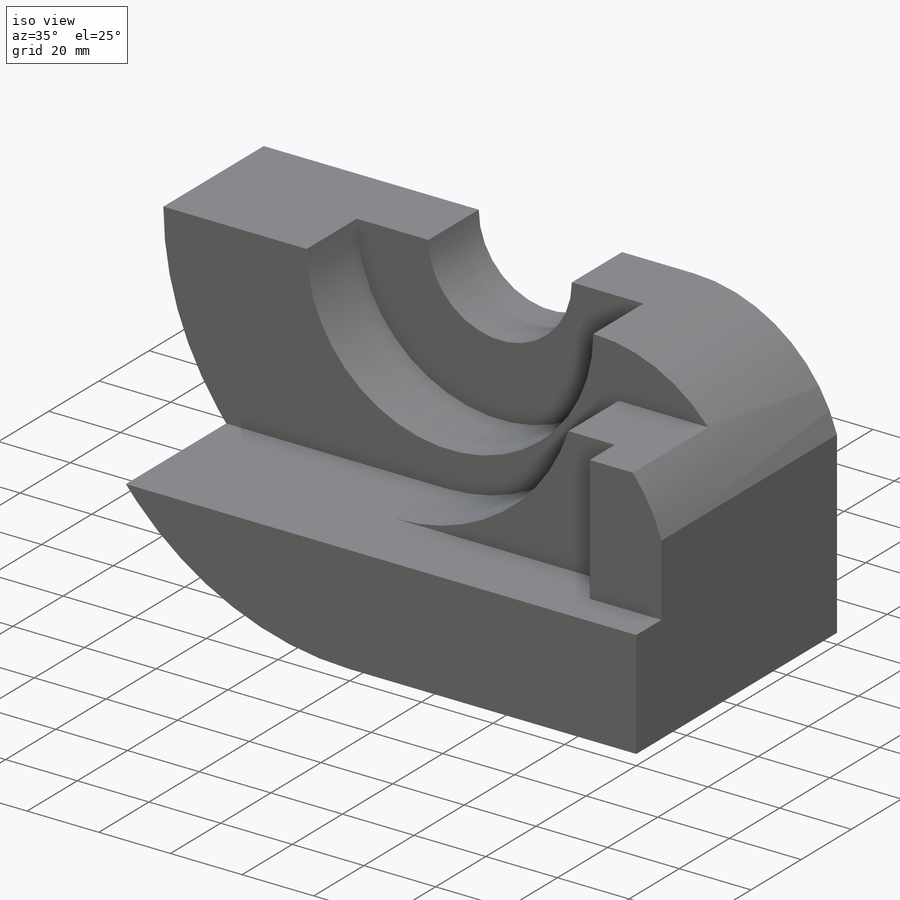
[diagram: iso view]
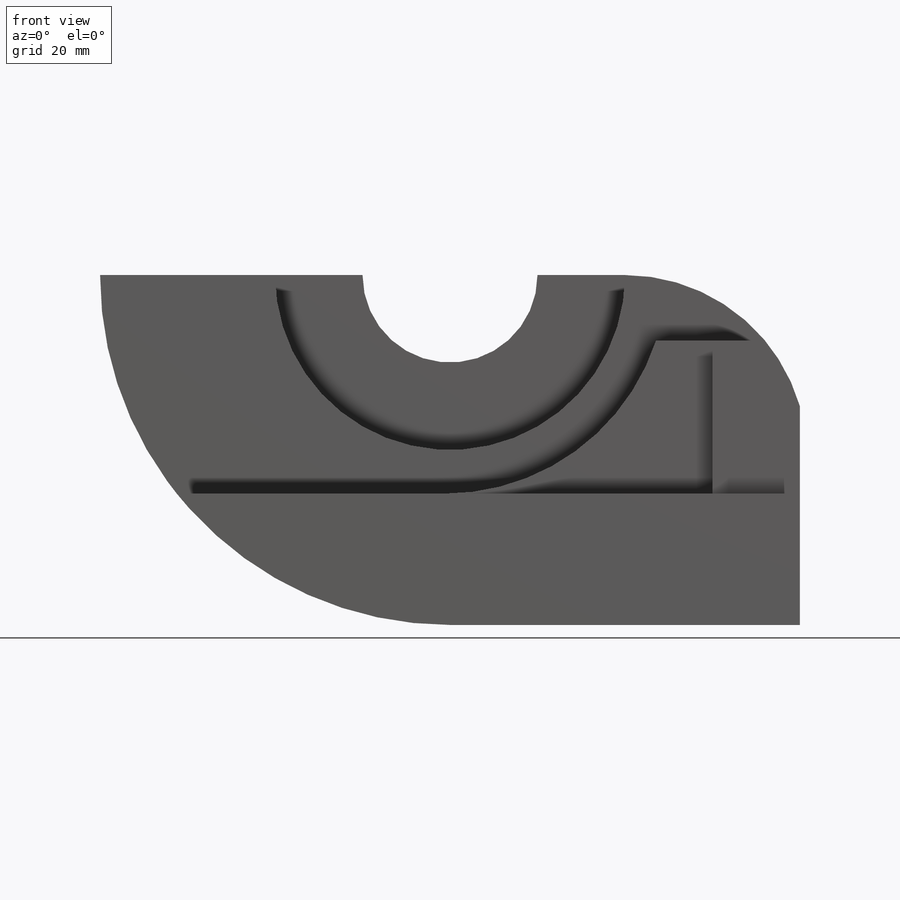
[diagram: front view]
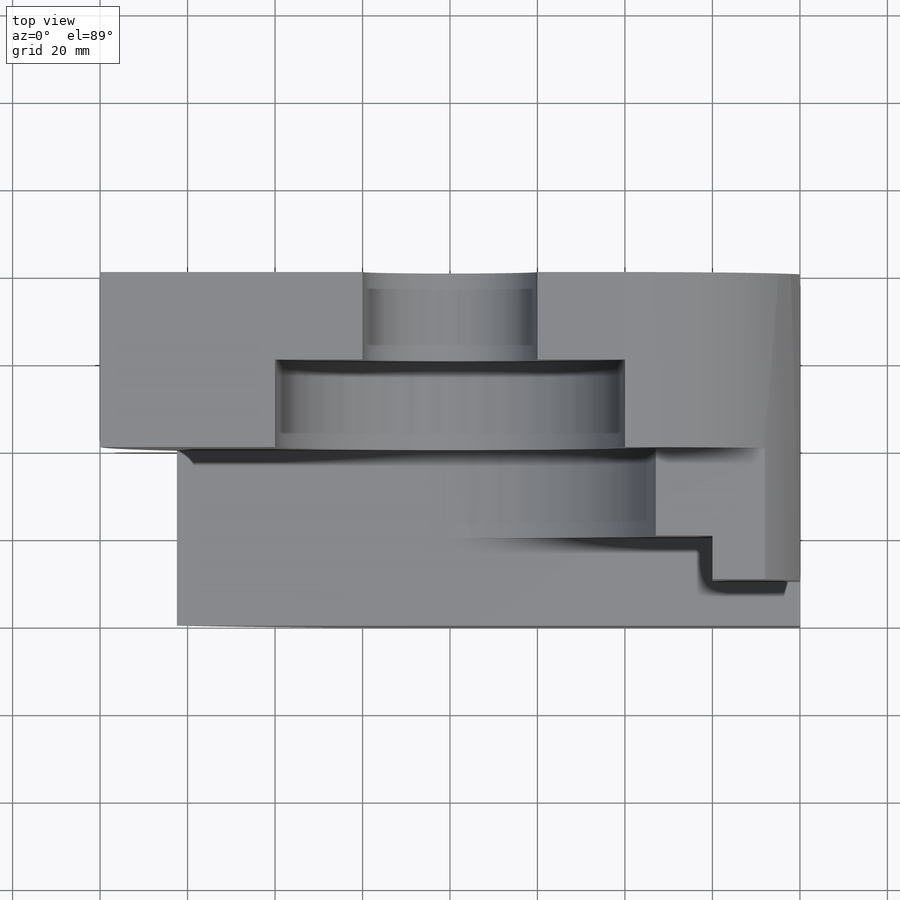
[diagram: top view]
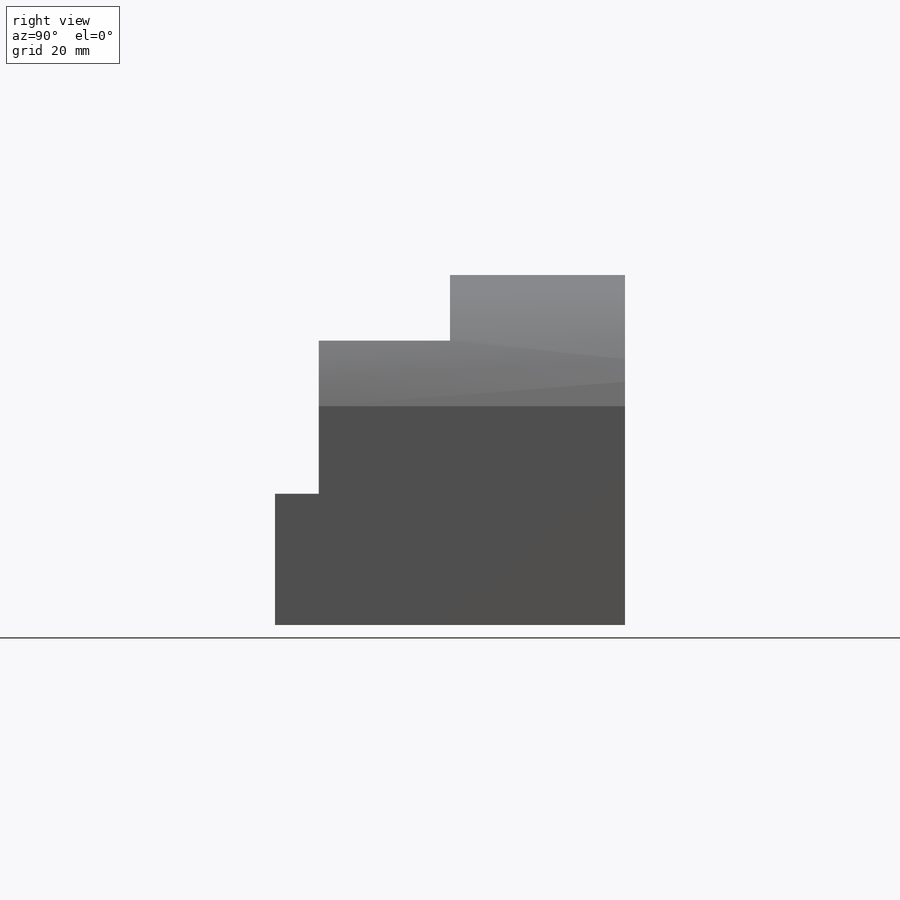
[diagram: right view]
SOLIDWORKS PART (.sldprt)
format: sldprt  version: not decoded by parser v0  size: 298,496 bytes
history: native  units: mm
features: sketch x8, cut_extrude x5, extrude x3, material x1, plane x1 (+13 scaffold rows collapsed)
feature tree (31):
  scaffold x13  (default folders/planes/origin — collapsed)
  material  "Material <not specified>"
  sketch  "Sketch1"  dims[c1.D1=20.0mm c1.D2=40.0mm c1.D3=80.0mm c1.D6=35.0mm c1.D10=30.0mm c1.D4=40.0mm c1.D5=20.0mm c2.D6=~16.708604mm c2.D7=80.0mm c2.D8=50.0mm c2.D9=10.0mm c2.D10=50.0mm c3.D9=0.0mm c3.D6=7.0mm c4.D9=47.0mm c4.D11=0.0mm c4.D6=10.0mm c5.D9=50.0mm]
  extrude  "Boss-Extrude5"  Depth=80mm
  sketch  "Sketch4"  dims[D1=20.0mm D3=40.0mm D4=20.0mm D5=60.0mm D2=0.0mm]
  extrude  "Boss-Extrude6"  Depth=20mm
  plane  "Plane1"  Offset=80mm
  sketch  "Sketch6"  dims[D1=10.0mm D2=30.0mm]
  cut_extrude  "Cut-Extrude5"  Depth=222mm
  sketch  "Sketch7"  dims[D1=15.0mm D2=30.0mm]
  cut_extrude  "Cut-Extrude6"  Depth=222mm
  sketch  "Sketch9"  dims[D1=20.0mm D2=~34.934629mm D3=0.0mm]
  cut_extrude  "Cut-Extrude7"  Depth=10mm
  sketch  "Sketch10"  dims[c1.D4=20.0mm c1.D1=15.0mm c1.D2=~7.919008mm c2.D1=0.0mm c2.D2=10.0mm c2.D3=35.0mm c2.D4=60.0mm]
  cut_extrude  "Cut-Extrude8"  Depth=10mm
  sketch  "Sketch11"  dims[D1=20.0mm D2=10.0mm D3=0.0mm]
  extrude  "Boss-Extrude9"  Depth=10mm
  sketch  "Sketch15"
  cut_extrude  "Cut-Extrude14"  Depth=30mm
decode coverage: 15 of 16 modeling features carry decoded parameters
note: ~ marks probable driven/reference dimensions
note: suppression state not decoded; provenance and decode notes live in map.json
